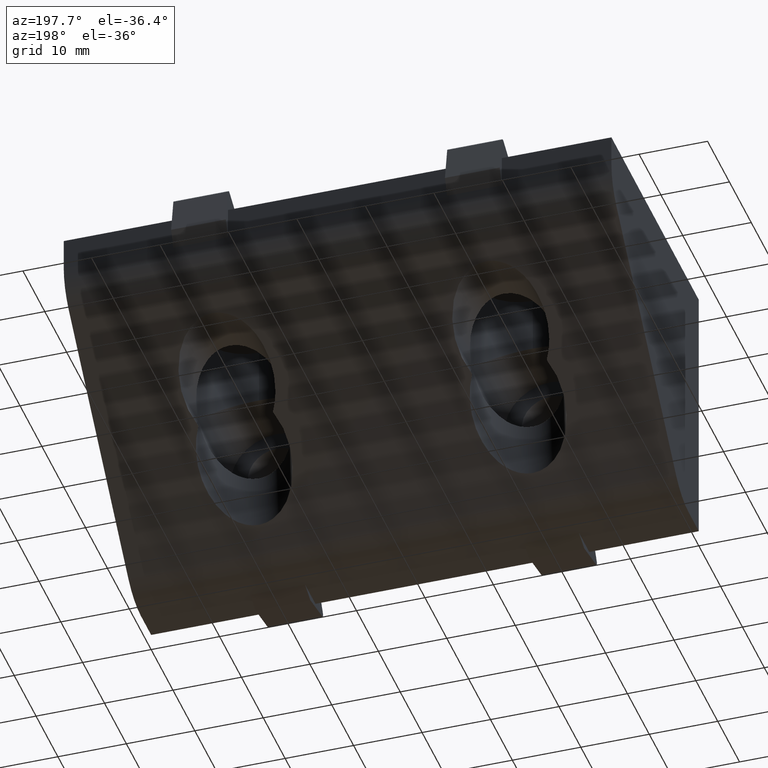
[diagram: clean part render]
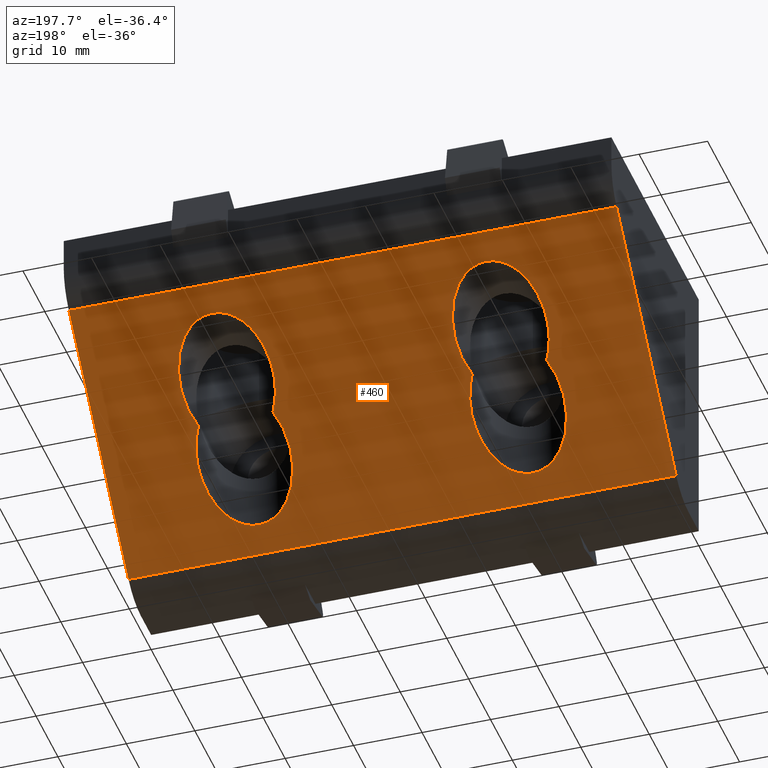
[diagram: same view with one face highlighted and labeled with its STEP entity id]
A machine part, auxiliary view. The second image highlights one B-rep face of the part: STEP entity #460.
In plain terms, the highlighted planar face has unit normal (0, -0.7071, 0.7071).
Its self-contained STEP definition (entity closure, byte-faithful):
#295=CARTESIAN_POINT('',(-39.999986349841187,10.343144983774774,-37.656844360023001));
#296=VERTEX_POINT('',#295);
#304=CARTESIAN_POINT('',(-23.999998453771390,10.343144983774776,-37.656844360023001));
#305=VERTEX_POINT('',#304);
#306=CARTESIAN_POINT('',(-23.999998453771390,10.343144983774774,-37.656844360023001));
#307=DIRECTION('',(-1.0,0.0,0.0));
#308=VECTOR('',#307,15.999987896069797);
#309=LINE('',#306,#308);
#310=EDGE_CURVE('',#305,#296,#309,.T.);
#312=CARTESIAN_POINT('',(-16.000001217935200,10.343144983774776,-37.656844360023001));
#313=VERTEX_POINT('',#312);
#314=CARTESIAN_POINT('',(-16.000001217935200,10.343144983774774,-37.656844360023001));
#315=DIRECTION('',(-1.0,0.0,0.0));
#316=VECTOR('',#315,7.999997235836190);
#317=LINE('',#314,#316);
#318=EDGE_CURVE('',#313,#305,#317,.T.);
#320=CARTESIAN_POINT('',(39.999986349841187,10.343144983774774,-37.656844360023001));
#321=VERTEX_POINT('',#320);
#322=CARTESIAN_POINT('',(39.999986349841187,10.343144983774774,-37.656844360023001));
#323=DIRECTION('',(-1.0,0.0,0.0));
#324=VECTOR('',#323,55.999987567776387);
#325=LINE('',#322,#324);
#326=EDGE_CURVE('',#321,#313,#325,.T.);
#338=CARTESIAN_POINT('',(39.999986349841187,10.343144983774774,-37.656844360023001));
#339=DIRECTION('',(0.0,-0.707106830503862,0.707106731869230));
#340=DIRECTION('',(0.0,0.707106731869230,0.707106830503862));
#341=AXIS2_PLACEMENT_3D('',#338,#339,#340);
#342=PLANE('',#341);
#343=ORIENTED_EDGE('',*,*,#326,.T.);
#344=ORIENTED_EDGE('',*,*,#318,.T.);
#345=ORIENTED_EDGE('',*,*,#310,.T.);
#346=CARTESIAN_POINT('',(-39.999986349841187,37.656841943009788,-10.343143590788269));
#347=VERTEX_POINT('',#346);
#348=CARTESIAN_POINT('',(-39.999986349841187,10.343144983774774,-37.656844360023001));
#349=DIRECTION('',(0.0,0.707106731869230,0.707106830503862));
#350=VECTOR('',#349,38.627403372375653);
#351=LINE('',#348,#350);
#352=EDGE_CURVE('',#296,#347,#351,.T.);
#353=ORIENTED_EDGE('',*,*,#352,.T.);
#354=CARTESIAN_POINT('',(-23.999992073934742,37.656841943009788,-10.343143590788271));
#355=VERTEX_POINT('',#354);
#356=CARTESIAN_POINT('',(-23.999992073934742,37.656841943009788,-10.343143590788269));
#357=DIRECTION('',(-1.0,0.0,0.0));
#358=VECTOR('',#357,15.999994275906445);
#359=LINE('',#356,#358);
#360=EDGE_CURVE('',#355,#347,#359,.T.);
#361=ORIENTED_EDGE('',*,*,#360,.F.);
#362=CARTESIAN_POINT('',(-15.999993587936920,37.656841943009788,-10.343143590788271));
#363=VERTEX_POINT('',#362);
#364=CARTESIAN_POINT('',(-15.999993587936920,37.656841943009788,-10.343143590788269));
#365=DIRECTION('',(-1.0,0.0,0.0));
#366=VECTOR('',#365,7.999998485997821);
#367=LINE('',#364,#366);
#368=EDGE_CURVE('',#363,#355,#367,.T.);
#369=ORIENTED_EDGE('',*,*,#368,.F.);
#370=CARTESIAN_POINT('',(15.999999045905192,37.656841943009788,-10.343143590788271));
#371=VERTEX_POINT('',#370);
#372=CARTESIAN_POINT('',(15.999999045905192,37.656841943009788,-10.343143590788269));
#373=DIRECTION('',(-1.0,0.0,0.0));
#374=VECTOR('',#373,31.999992633842112);
#375=LINE('',#372,#374);
#376=EDGE_CURVE('',#371,#363,#375,.T.);
#377=ORIENTED_EDGE('',*,*,#376,.F.);
#378=CARTESIAN_POINT('',(23.999997531903013,37.656841943009788,-10.343143590788271));
#379=VERTEX_POINT('',#378);
#380=CARTESIAN_POINT('',(23.999997531903013,37.656841943009788,-10.343143590788269));
#381=DIRECTION('',(-1.0,0.0,0.0));
#382=VECTOR('',#381,7.999998485997821);
#383=LINE('',#380,#382);
#384=EDGE_CURVE('',#379,#371,#383,.T.);
#385=ORIENTED_EDGE('',*,*,#384,.F.);
#386=CARTESIAN_POINT('',(39.999986349841187,37.656841943009788,-10.343143590788269));
#387=VERTEX_POINT('',#386);
#388=CARTESIAN_POINT('',(39.999986349841187,37.656841943009788,-10.343143590788269));
#389=DIRECTION('',(-1.0,0.0,0.0));
#390=VECTOR('',#389,15.999988817938174);
#391=LINE('',#388,#390);
#392=EDGE_CURVE('',#387,#379,#391,.T.);
#393=ORIENTED_EDGE('',*,*,#392,.F.);
#394=CARTESIAN_POINT('',(39.999986349841187,10.343144983774774,-37.656844360023001));
#395=DIRECTION('',(0.0,0.707106731869230,0.707106830503862));
#396=VECTOR('',#395,38.627403372375653);
#397=LINE('',#394,#396);
#398=EDGE_CURVE('',#321,#387,#397,.T.);
#399=ORIENTED_EDGE('',*,*,#398,.F.);
#400=EDGE_LOOP('',(#343,#344,#345,#353,#361,#369,#377,#385,#393,#399));
#401=FACE_OUTER_BOUND('',#400,.T.);
#402=CARTESIAN_POINT('',(25.437139671100745,23.999992408000303,-23.999995030797592));
#403=VERTEX_POINT('',#402);
#404=CARTESIAN_POINT('',(14.562857168740376,23.999992407996466,-23.999995030801600));
#405=VERTEX_POINT('',#404);
#406=CARTESIAN_POINT('',(19.999998419919088,27.999995135905468,-19.999991744930448));
#407=DIRECTION('',(0.0,-0.707106830503862,0.707106731869230));
#408=DIRECTION('',(0.0,0.707106731869230,0.707106830503862));
#409=AXIS2_PLACEMENT_3D('',#406,#407,#408);
#410=ELLIPSE('',#409,9.545944156207165,6.750002316462510);
#411=EDGE_CURVE('',#403,#405,#410,.T.);
#412=ORIENTED_EDGE('',*,*,#411,.T.);
#413=CARTESIAN_POINT('',(19.999998419919088,13.249997058446898,-34.749991879872788));
#414=VERTEX_POINT('',#413);
#415=CARTESIAN_POINT('',(19.999998419919088,19.999995559920084,-27.999992436839324));
#416=DIRECTION('',(0.0,-0.707106830503862,0.707106731869230));
#417=DIRECTION('',(0.0,-0.707106731869230,-0.707106830503862));
#418=AXIS2_PLACEMENT_3D('',#415,#416,#417);
#419=ELLIPSE('',#418,9.545940092565134,6.749998501473186);
#420=EDGE_CURVE('',#405,#414,#419,.T.);
#421=ORIENTED_EDGE('',*,*,#420,.T.);
#422=CARTESIAN_POINT('',(19.999998419919088,19.999995559920084,-27.999992436839324));
#423=DIRECTION('',(0.0,-0.707106830503862,0.707106731869230));
#424=DIRECTION('',(0.0,-0.707106731869230,-0.707106830503862));
#425=AXIS2_PLACEMENT_3D('',#422,#423,#424);
#426=ELLIPSE('',#425,9.545940092565134,6.749998501473186);
#427=EDGE_CURVE('',#414,#403,#426,.T.);
#428=ORIENTED_EDGE('',*,*,#427,.T.);
#429=EDGE_LOOP('',(#412,#421,#428));
#430=FACE_BOUND('',#429,.T.);
#431=CARTESIAN_POINT('',(-25.437133951099561,23.999992407996466,-23.999995030801600));
#432=VERTEX_POINT('',#431);
#433=CARTESIAN_POINT('',(-19.999992699920845,13.249997058446898,-34.749991879872788));
#434=VERTEX_POINT('',#433);
#435=CARTESIAN_POINT('',(-19.999992699920845,19.999995559920084,-27.999992436839324));
#436=DIRECTION('',(0.0,-0.707106830503862,0.707106731869230));
#437=DIRECTION('',(0.0,-0.707106731869230,-0.707106830503862));
#438=AXIS2_PLACEMENT_3D('',#435,#436,#437);
#439=ELLIPSE('',#438,9.545940092565134,6.749998501473186);
#440=EDGE_CURVE('',#432,#434,#439,.T.);
#441=ORIENTED_EDGE('',*,*,#440,.T.);
#442=CARTESIAN_POINT('',(-14.562851448739188,23.999992408000303,-23.999995030797592));
#443=VERTEX_POINT('',#442);
#444=CARTESIAN_POINT('',(-19.999992699920845,19.999995559920084,-27.999992436839324));
#445=DIRECTION('',(0.0,-0.707106830503862,0.707106731869230));
#446=DIRECTION('',(0.0,-0.707106731869230,-0.707106830503862));
#447=AXIS2_PLACEMENT_3D('',#444,#445,#446);
#448=ELLIPSE('',#447,9.545940092565134,6.749998501473186);
#449=EDGE_CURVE('',#434,#443,#448,.T.);
#450=ORIENTED_EDGE('',*,*,#449,.T.);
#451=CARTESIAN_POINT('',(-19.999992699920845,27.999995135905468,-19.999991744930448));
#452=DIRECTION('',(0.0,-0.707106830503862,0.707106731869230));
#453=DIRECTION('',(0.0,0.707106731869230,0.707106830503862));
#454=AXIS2_PLACEMENT_3D('',#451,#452,#453);
#455=ELLIPSE('',#454,9.545944156207165,6.750002316462510);
#456=EDGE_CURVE('',#443,#432,#455,.T.);
#457=ORIENTED_EDGE('',*,*,#456,.T.);
#458=EDGE_LOOP('',(#441,#450,#457));
#459=FACE_BOUND('',#458,.T.);
#460=ADVANCED_FACE('',(#401,#430,#459),#342,.F.);